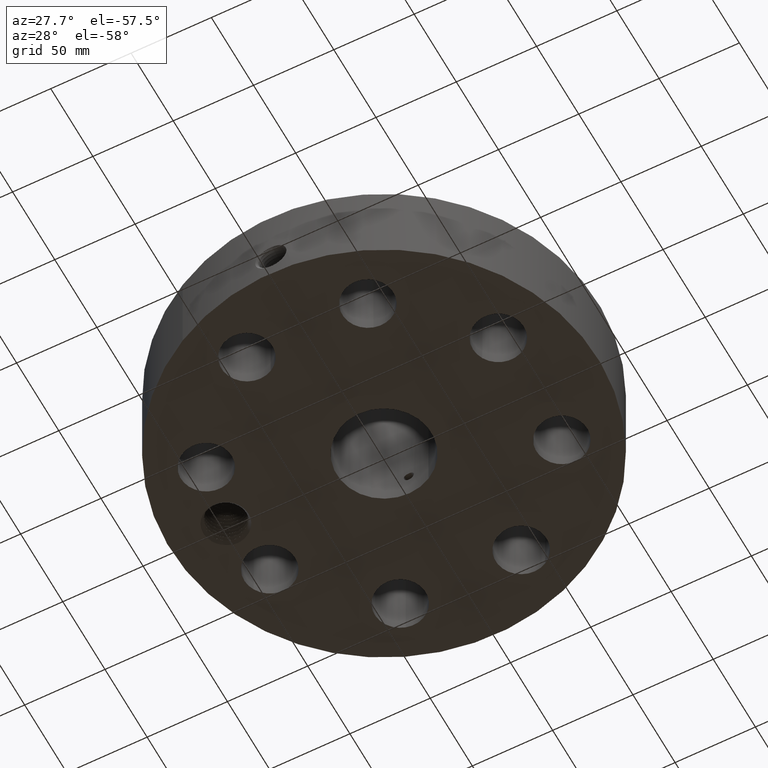
[diagram: clean part render]
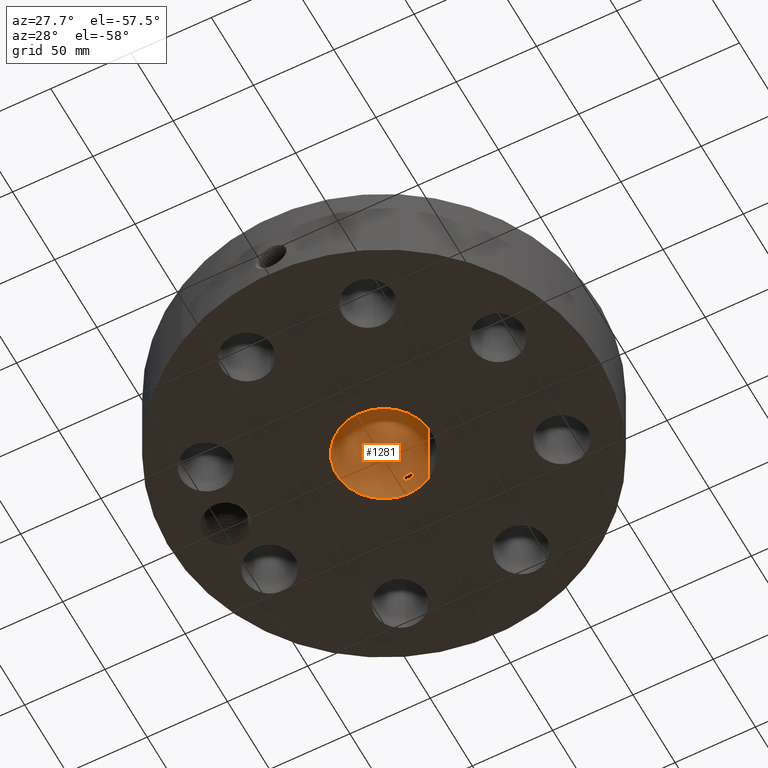
[diagram: same view with one face highlighted and labeled with its STEP entity id]
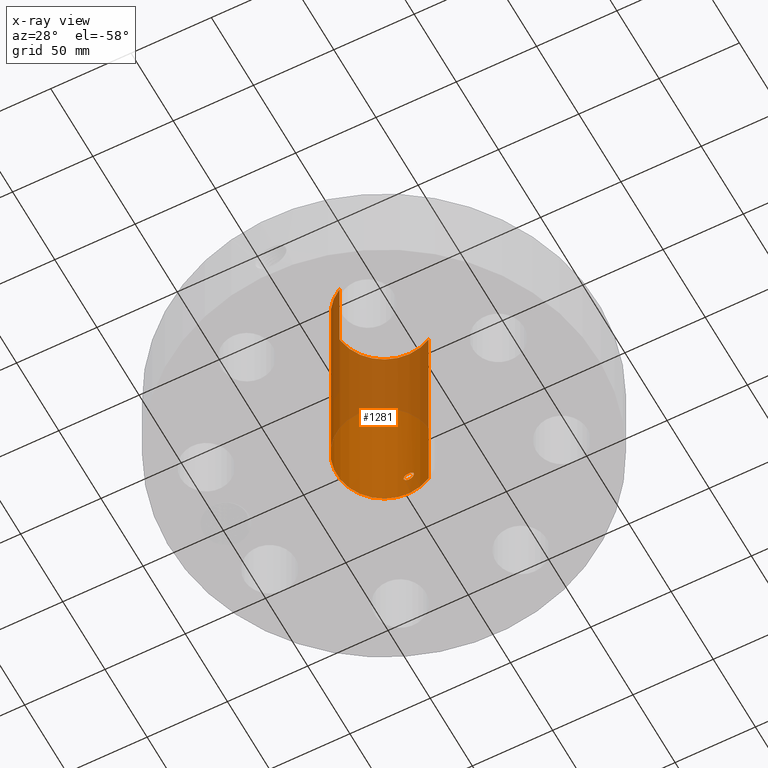
[diagram: x-ray of the same camera — body ghosted, the highlighted face saturated]
A machine part, auxiliary view. The second image highlights one B-rep face of the part: STEP entity #1281.
The next image is the same camera in x-ray: the body ghosted, the highlighted face saturated — about 46% of this face is hidden behind the body in this view.
In plain terms, the highlighted cylindrical surface (partial cylindrical patch) has radius 29.5021 mm, axis along (0, 0, -1).
Its self-contained STEP definition (entity closure, byte-faithful):
#258=AXIS2_PLACEMENT_3D('Circle Axis2P3D',#256,#257,$) ;
#1158=AXIS2_PLACEMENT_3D('Cylinder Axis2P3D',#1155,#1156,#1157) ;
#1230=AXIS2_PLACEMENT_3D('Circle Axis2P3D',#1228,#1229,$) ;
#251=CARTESIAN_POINT('Vertex',(0.556852763091,1.01931214564,0.250000000001)) ;
#253=CARTESIAN_POINT('Vertex',(-0.556852763091,-1.01931214564,0.250000000001)) ;
#256=CARTESIAN_POINT('Axis2P3D Location',(0.,0.,0.250000000001)) ;
#1155=CARTESIAN_POINT('Axis2P3D Location',(0.,0.,3.06000000001)) ;
#1164=CARTESIAN_POINT('Vertex',(0.556852763091,1.01931214564,5.87000000002)) ;
#1166=CARTESIAN_POINT('Vertex',(-0.556852763091,-1.01931214564,5.87000000002)) ;
#1169=CARTESIAN_POINT('Line Origine',(0.556852763091,1.01931214564,3.06000000001)) ;
#1174=CARTESIAN_POINT('Line Origine',(-0.556852763091,-1.01931214564,3.06000000001)) ;
#1228=CARTESIAN_POINT('Axis2P3D Location',(0.,0.,5.87000000002)) ;
#1240=CARTESIAN_POINT('Control Point',(0.109697820237,1.15630819345,0.99992819233)) ;
#1241=CARTESIAN_POINT('Control Point',(0.10306098934,1.15693782307,1.0120768298)) ;
#1242=CARTESIAN_POINT('Control Point',(0.094744823089,1.15767872447,1.02330225092)) ;
#1243=CARTESIAN_POINT('Control Point',(0.0849182887528,1.15846635587,1.03329908608)) ;
#1244=CARTESIAN_POINT('Control Point',(0.0516886767813,1.16070631198,1.05881277775)) ;
#1245=CARTESIAN_POINT('Control Point',(0.00989996083934,1.1619951466,1.0693686606)) ;
#1246=CARTESIAN_POINT('Control Point',(-0.0193347640195,1.16185763576,1.06829492685)) ;
#1247=CARTESIAN_POINT('Control Point',(-0.0602547442517,1.16026013349,1.05471000982)) ;
#1248=CARTESIAN_POINT('Control Point',(-0.0915436738505,1.15795237812,1.02681409429)) ;
#1249=CARTESIAN_POINT('Control Point',(-0.100627251505,1.15717313002,1.01610023547)) ;
#1250=CARTESIAN_POINT('Control Point',(-0.120582805504,1.15530347133,0.984531428989)) ;
#1251=CARTESIAN_POINT('Control Point',(-0.128082059404,1.15440542413,0.947269804739)) ;
#1252=CARTESIAN_POINT('Control Point',(-0.12718750833,1.15451484049,0.923245169797)) ;
#1253=CARTESIAN_POINT('Control Point',(-0.120786722983,1.15525620016,0.900369908001)) ;
#1254=CARTESIAN_POINT('Control Point',(-0.109697820237,1.15630819345,0.880071807678)) ;
#1255=CARTESIAN_POINT('Vertex',(0.109697820237,1.15630819345,0.99992819233)) ;
#1257=CARTESIAN_POINT('Vertex',(-0.109697820237,1.15630819345,0.880071807678)) ;
#1261=CARTESIAN_POINT('Control Point',(-0.109697820237,1.15630819345,0.880071807678)) ;
#1262=CARTESIAN_POINT('Control Point',(-0.103060989338,1.15693782307,0.867923170206)) ;
#1263=CARTESIAN_POINT('Control Point',(-0.0947448230823,1.15767872447,0.856697749081)) ;
#1264=CARTESIAN_POINT('Control Point',(-0.0849182887627,1.15846635587,0.846700913938)) ;
#1265=CARTESIAN_POINT('Control Point',(-0.0516886767891,1.16070631197,0.821187222261)) ;
#1266=CARTESIAN_POINT('Control Point',(-0.00989996084354,1.1619951466,0.810631339404)) ;
#1267=CARTESIAN_POINT('Control Point',(0.0193347640207,1.16185763576,0.811705073156)) ;
#1268=CARTESIAN_POINT('Control Point',(0.0602547442457,1.16026013349,0.825289990181)) ;
#1269=CARTESIAN_POINT('Control Point',(0.0915436738407,1.15795237813,0.853185905709)) ;
#1270=CARTESIAN_POINT('Control Point',(0.100627251511,1.15717313002,0.863899764543)) ;
#1271=CARTESIAN_POINT('Control Point',(0.1205828055,1.15530347133,0.895468571016)) ;
#1272=CARTESIAN_POINT('Control Point',(0.1280820594,1.15440542413,0.932730195251)) ;
#1273=CARTESIAN_POINT('Control Point',(0.127187508325,1.15451484049,0.956754830226)) ;
#1274=CARTESIAN_POINT('Control Point',(0.120786722979,1.15525620016,0.979630092013)) ;
#1275=CARTESIAN_POINT('Control Point',(0.109697820237,1.15630819345,0.99992819233)) ;
#257=DIRECTION('Axis2P3D Direction',(0.,0.,-0.0393700787402)) ;
#1156=DIRECTION('Axis2P3D Direction',(0.,0.,-0.0393700787402)) ;
#1157=DIRECTION('Axis2P3D XDirection',(-0.0188750212049,-0.0345504945626,0.)) ;
#1170=DIRECTION('Vector Direction',(0.,0.,-0.0393700787402)) ;
#1175=DIRECTION('Vector Direction',(0.,0.,-0.0393700787402)) ;
#1229=DIRECTION('Axis2P3D Direction',(0.,0.,-0.0393700787402)) ;
#1171=VECTOR('Line Direction',#1170,0.0393700787402) ;
#1176=VECTOR('Line Direction',#1175,0.0393700787402) ;
#1234=ORIENTED_EDGE('',*,*,#1232,.F.) ;
#1235=ORIENTED_EDGE('',*,*,#1178,.T.) ;
#1236=ORIENTED_EDGE('',*,*,#260,.T.) ;
#1237=ORIENTED_EDGE('',*,*,#1173,.F.) ;
#1278=ORIENTED_EDGE('',*,*,#1259,.F.) ;
#1279=ORIENTED_EDGE('',*,*,#1276,.F.) ;
#1280=FACE_BOUND('',#1277,.T.) ;
#1281=ADVANCED_FACE('PartBody',(#1238,#1280),#1159,.F.) ;
#1239=B_SPLINE_CURVE_WITH_KNOTS('',5,(#1240,#1241,#1242,#1243,#1244,#1245,#1246,#1247,#1248,#1249,#1250,#1251,#1252,#1253,#1254),.UNSPECIFIED.,.F.,.U.,(6,3,3,3,6),(0.,2.48889770941,7.4639786016,9.95771115039,14.1161935758),.UNSPECIFIED.) ;
#1260=B_SPLINE_CURVE_WITH_KNOTS('',5,(#1261,#1262,#1263,#1264,#1265,#1266,#1267,#1268,#1269,#1270,#1271,#1272,#1273,#1274,#1275),.UNSPECIFIED.,.F.,.U.,(6,3,3,3,6),(0.,2.48889771041,7.46397860236,9.95771115008,14.1161935741),.UNSPECIFIED.) ;
#259=CIRCLE('generated circle',#258,1.1615) ;
#1231=CIRCLE('generated circle',#1230,1.1615) ;
#1159=CYLINDRICAL_SURFACE('generated cylinder',#1158,1.1615) ;
#260=EDGE_CURVE('',#254,#252,#259,.T.) ;
#1173=EDGE_CURVE('',#1165,#252,#1172,.T.) ;
#1178=EDGE_CURVE('',#1167,#254,#1177,.T.) ;
#1232=EDGE_CURVE('',#1167,#1165,#1231,.T.) ;
#1259=EDGE_CURVE('',#1256,#1258,#1239,.T.) ;
#1276=EDGE_CURVE('',#1258,#1256,#1260,.T.) ;
#1233=EDGE_LOOP('',(#1234,#1235,#1236,#1237)) ;
#1277=EDGE_LOOP('',(#1278,#1279)) ;
#1238=FACE_OUTER_BOUND('',#1233,.T.) ;
#1172=LINE('Line',#1169,#1171) ;
#1177=LINE('Line',#1174,#1176) ;
#252=VERTEX_POINT('',#251) ;
#254=VERTEX_POINT('',#253) ;
#1165=VERTEX_POINT('',#1164) ;
#1167=VERTEX_POINT('',#1166) ;
#1256=VERTEX_POINT('',#1255) ;
#1258=VERTEX_POINT('',#1257) ;